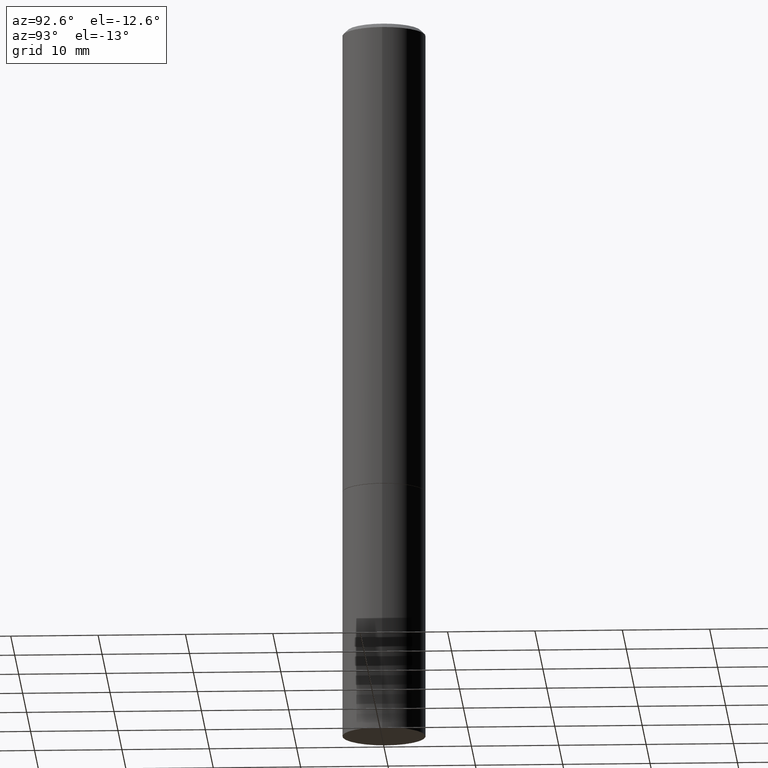
[diagram: clean part render]
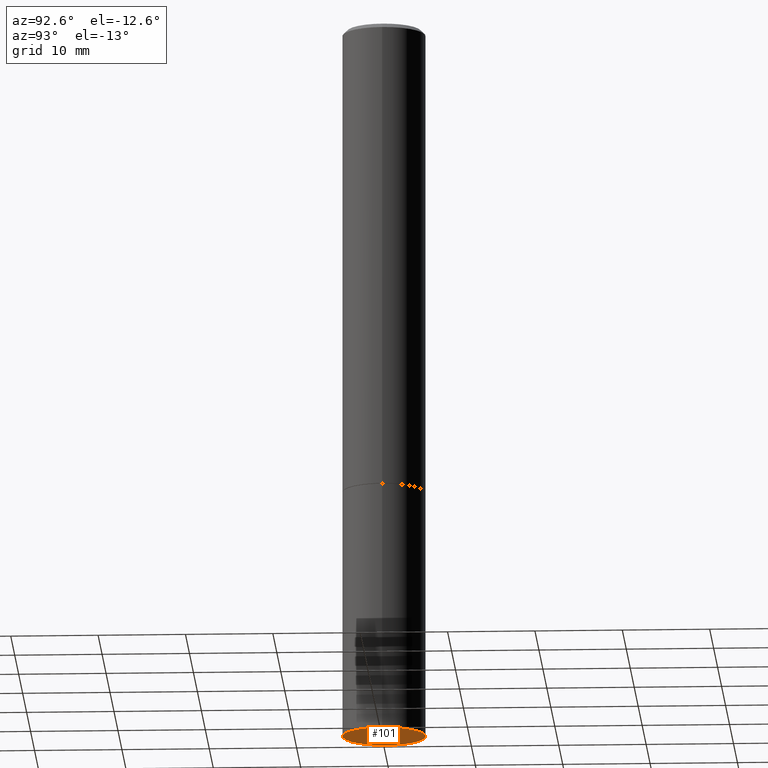
[diagram: same view with one face highlighted and labeled with its STEP entity id]
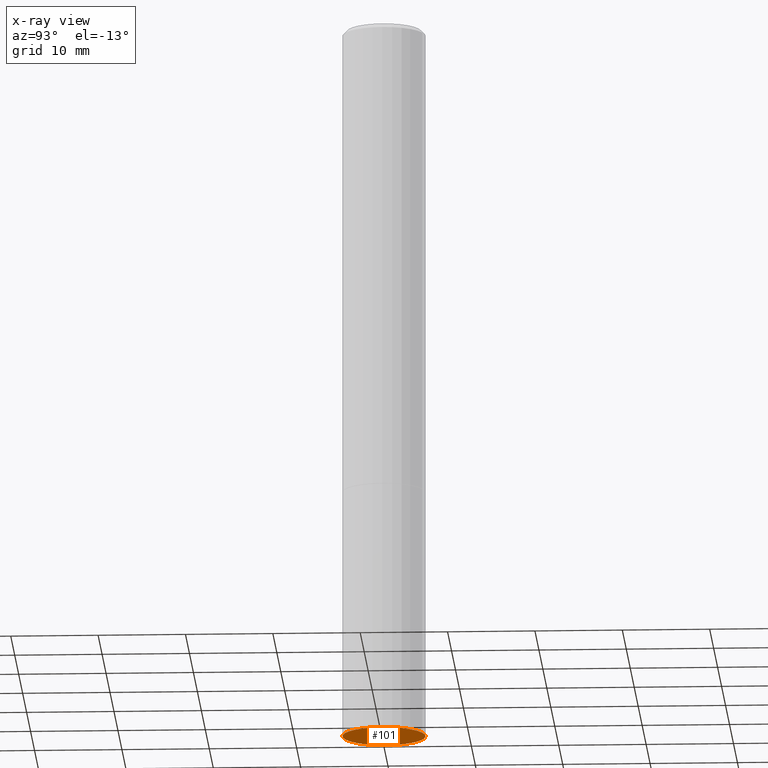
[diagram: x-ray of the same camera — body ghosted, the highlighted face saturated]
A machine part, auxiliary view. The second image highlights one B-rep face of the part: STEP entity #101.
The next image is the same camera in x-ray: the body ghosted, the highlighted face saturated — about 0% of this face is hidden behind the body in this view.
In plain terms, the highlighted planar face has unit normal (0, -0, -1).
Its self-contained STEP definition (entity closure, byte-faithful):
#23 = VERTEX_POINT ( 'NONE', #311 ) ;
#31 = CARTESIAN_POINT ( 'NONE',  ( 1.309305502066254683E-15, 0.1874999999999886757, -3.250000000000000444 ) ) ;
#35 = AXIS2_PLACEMENT_3D ( 'NONE', #175, #36, #146 ) ;
#36 = DIRECTION ( 'NONE',  ( -2.445468806185136597E-29, 3.491481338843145583E-15, 1.000000000000000000 ) ) ;
#45 = EDGE_CURVE ( 'NONE', #23, #81, #113, .T. ) ;
#74 = EDGE_LOOP ( 'NONE', ( #327, #79 ) ) ;
#79 = ORIENTED_EDGE ( 'NONE', *, *, #45, .F. ) ;
#81 = VERTEX_POINT ( 'NONE', #234 ) ;
#83 = CIRCLE ( 'NONE', #35, 0.1875000000000000278 ) ;
#87 = DIRECTION ( 'NONE',  ( -2.445468806185136597E-29, 3.491481338843145583E-15, 1.000000000000000000 ) ) ;
#101 = ADVANCED_FACE ( 'NONE', ( #229 ), #172, .T. ) ;
#113 = CIRCLE ( 'NONE', #243, 0.1875000000000000278 ) ;
#142 = DIRECTION ( 'NONE',  ( 2.438088387897960049E-29, -3.491481338843145188E-15, -1.000000000000000000 ) ) ;
#146 = DIRECTION ( 'NONE',  ( 1.000000000000000000, -6.982962677686261189E-15, 0.000000000000000000 ) ) ;
#172 = PLANE ( 'NONE',  #345 ) ;
#175 = CARTESIAN_POINT ( 'NONE',  ( 7.947773620101693940E-29, -1.134731435124022443E-14, -3.250000000000000000 ) ) ;
#228 = EDGE_CURVE ( 'NONE', #81, #23, #83, .T. ) ;
#229 = FACE_OUTER_BOUND ( 'NONE', #74, .T. ) ;
#234 = CARTESIAN_POINT ( 'NONE',  ( 0.1875000000000000278, -1.265661985330639786E-14, -3.250000000000000000 ) ) ;
#243 = AXIS2_PLACEMENT_3D ( 'NONE', #255, #87, #288 ) ;
#255 = CARTESIAN_POINT ( 'NONE',  ( 7.947773620101693940E-29, -1.134731435124022443E-14, -3.250000000000000000 ) ) ;
#285 = DIRECTION ( 'NONE',  ( -1.000000000000000000, 6.982962677686265922E-15, -4.876176775795935793E-29 ) ) ;
#288 = DIRECTION ( 'NONE',  ( 1.000000000000000000, -6.982962677686261189E-15, 0.000000000000000000 ) ) ;
#311 = CARTESIAN_POINT ( 'NONE',  ( -0.1875000000000000278, -8.051088468590765387E-15, -3.250000000000000000 ) ) ;
#327 = ORIENTED_EDGE ( 'NONE', *, *, #228, .F. ) ;
#345 = AXIS2_PLACEMENT_3D ( 'NONE', #31, #142, #285 ) ;